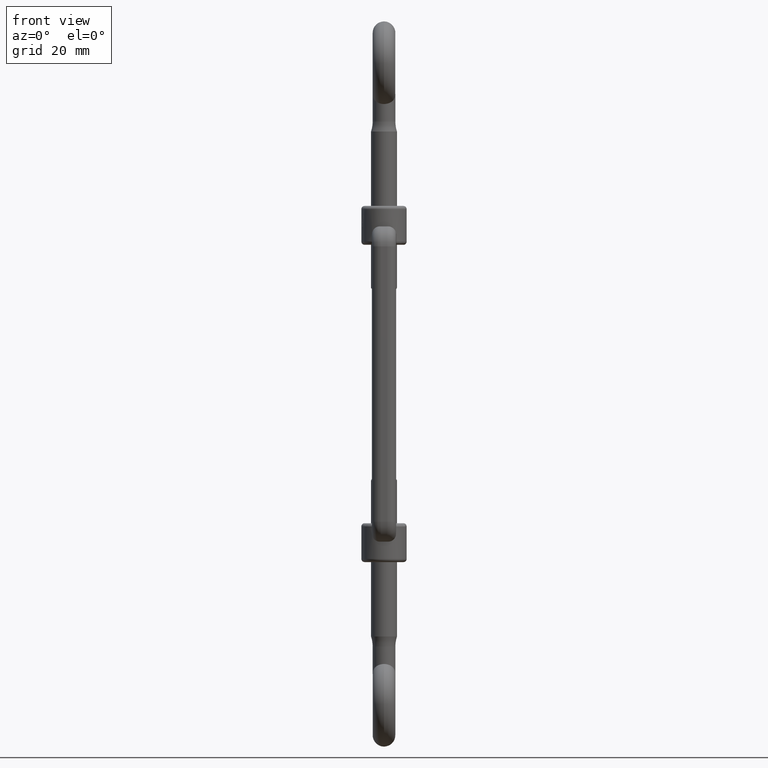
[diagram: clean part render]
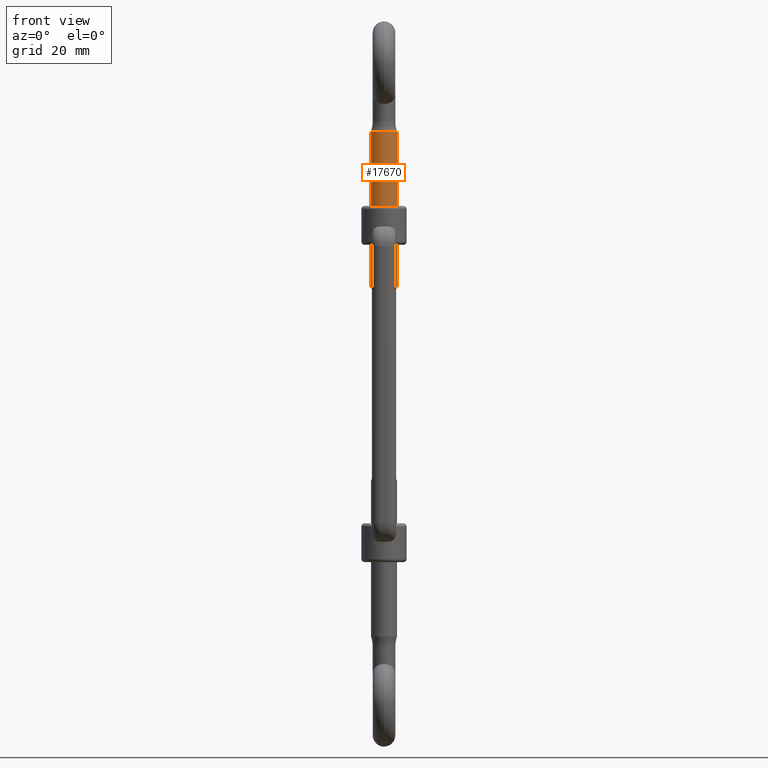
[diagram: same view with one face highlighted and labeled with its STEP entity id]
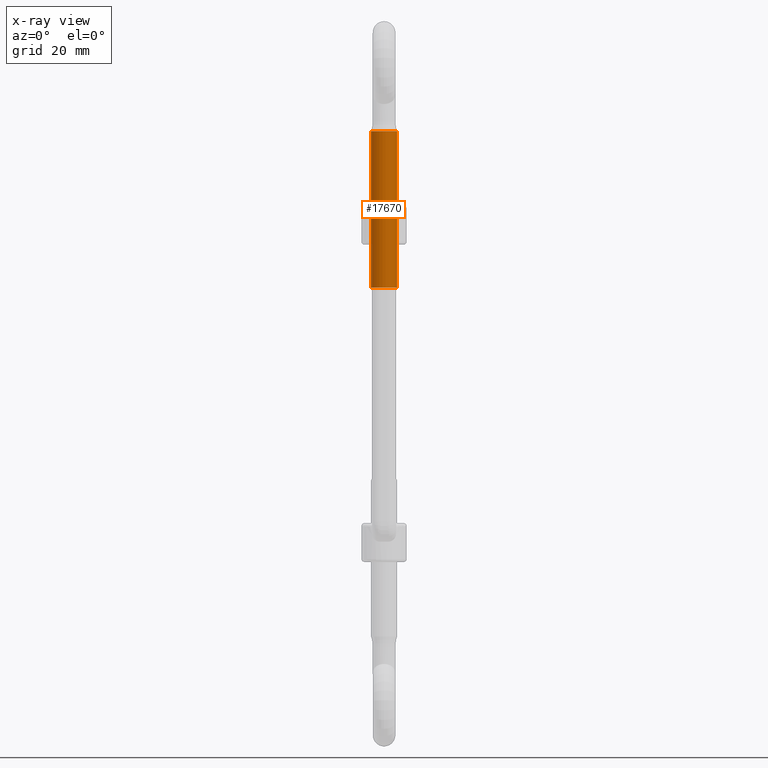
[diagram: x-ray of the same camera — body ghosted, the highlighted face saturated]
A machine part, front view. The second image highlights one B-rep face of the part: STEP entity #17670.
The next image is the same camera in x-ray: the body ghosted, the highlighted face saturated — about 0% of this face is hidden behind the body in this view.
In plain terms, the highlighted cylindrical surface (edge-blend (fillet) strip) has radius 4 mm, axis along (0, 0, -1).
Its self-contained STEP definition (entity closure, byte-faithful):
#135 = VECTOR ( 'NONE', #3251, 1000.000000000000000 ) ;
#587 = DIRECTION ( 'NONE',  ( -0.0000000000000000000, 1.000000000000000000, -0.0000000000000000000 ) ) ;
#1072 = ORIENTED_EDGE ( 'NONE', *, *, #11582, .T. ) ;
#1232 = EDGE_CURVE ( 'NONE', #2883, #7988, #9132, .T. ) ;
#1660 = DIRECTION ( 'NONE',  ( 0.0000000000000000000, 1.000000000000000000, 0.0000000000000000000 ) ) ;
#2492 = VERTEX_POINT ( 'NONE', #11335 ) ;
#2552 = ORIENTED_EDGE ( 'NONE', *, *, #15541, .F. ) ;
#2726 = CARTESIAN_POINT ( 'NONE',  ( 4.898587196589412800E-016, -82.26794919243111800, 4.000000000000000000 ) ) ;
#2883 = VERTEX_POINT ( 'NONE', #4027 ) ;
#3158 = DIRECTION ( 'NONE',  ( 0.0000000000000000000, 0.0000000000000000000, -1.000000000000000000 ) ) ;
#3251 = DIRECTION ( 'NONE',  ( -0.0000000000000000000, -1.000000000000000000, -0.0000000000000000000 ) ) ;
#3735 = CARTESIAN_POINT ( 'NONE',  ( 0.0000000000000000000, -82.26794919243111800, 0.0000000000000000000 ) ) ;
#4027 = CARTESIAN_POINT ( 'NONE',  ( 0.0000000000000000000, -34.00000000000000000, -4.000000000000000000 ) ) ;
#5421 = ORIENTED_EDGE ( 'NONE', *, *, #20093, .T. ) ;
#5452 = CYLINDRICAL_SURFACE ( 'NONE', #8302, 4.000000000000000000 ) ;
#5945 = FACE_OUTER_BOUND ( 'NONE', #8366, .T. ) ;
#6445 = DIRECTION ( 'NONE',  ( 0.0000000000000000000, 0.0000000000000000000, 1.000000000000000000 ) ) ;
#7639 = LINE ( 'NONE', #14566, #15125 ) ;
#7747 = VERTEX_POINT ( 'NONE', #2726 ) ;
#7988 = VERTEX_POINT ( 'NONE', #14770 ) ;
#7997 = CARTESIAN_POINT ( 'NONE',  ( 0.0000000000000000000, -34.00000000000000000, 0.0000000000000000000 ) ) ;
#8157 = CIRCLE ( 'NONE', #13905, 4.000000000000000000 ) ;
#8302 = AXIS2_PLACEMENT_3D ( 'NONE', #7997, #14323, #3158 ) ;
#8366 = EDGE_LOOP ( 'NONE', ( #2552, #1072, #5421, #15932 ) ) ;
#9132 = LINE ( 'NONE', #17274, #135 ) ;
#9929 = CIRCLE ( 'NONE', #16695, 4.000000000000000000 ) ;
#11283 = CARTESIAN_POINT ( 'NONE',  ( 0.0000000000000000000, -34.00000000000000000, 0.0000000000000000000 ) ) ;
#11335 = CARTESIAN_POINT ( 'NONE',  ( 4.898587196589412800E-016, -34.00000000000000000, 4.000000000000000000 ) ) ;
#11555 = DIRECTION ( 'NONE',  ( -0.0000000000000000000, -1.000000000000000000, -0.0000000000000000000 ) ) ;
#11582 = EDGE_CURVE ( 'NONE', #2492, #7747, #7639, .T. ) ;
#13905 = AXIS2_PLACEMENT_3D ( 'NONE', #3735, #587, #14769 ) ;
#14323 = DIRECTION ( 'NONE',  ( -0.0000000000000000000, -1.000000000000000000, -0.0000000000000000000 ) ) ;
#14566 = CARTESIAN_POINT ( 'NONE',  ( 4.898587196589412800E-016, -34.00000000000000000, 4.000000000000000000 ) ) ;
#14769 = DIRECTION ( 'NONE',  ( 0.0000000000000000000, 0.0000000000000000000, 1.000000000000000000 ) ) ;
#14770 = CARTESIAN_POINT ( 'NONE',  ( 0.0000000000000000000, -82.26794919243111800, -4.000000000000000000 ) ) ;
#15125 = VECTOR ( 'NONE', #11555, 1000.000000000000000 ) ;
#15541 = EDGE_CURVE ( 'NONE', #2492, #2883, #9929, .T. ) ;
#15932 = ORIENTED_EDGE ( 'NONE', *, *, #1232, .F. ) ;
#16695 = AXIS2_PLACEMENT_3D ( 'NONE', #11283, #1660, #6445 ) ;
#17274 = CARTESIAN_POINT ( 'NONE',  ( 0.0000000000000000000, -34.00000000000000000, -4.000000000000000000 ) ) ;
#17670 = ADVANCED_FACE ( 'NONE', ( #5945 ), #5452, .T. ) ;
#20093 = EDGE_CURVE ( 'NONE', #7747, #7988, #8157, .T. ) ;